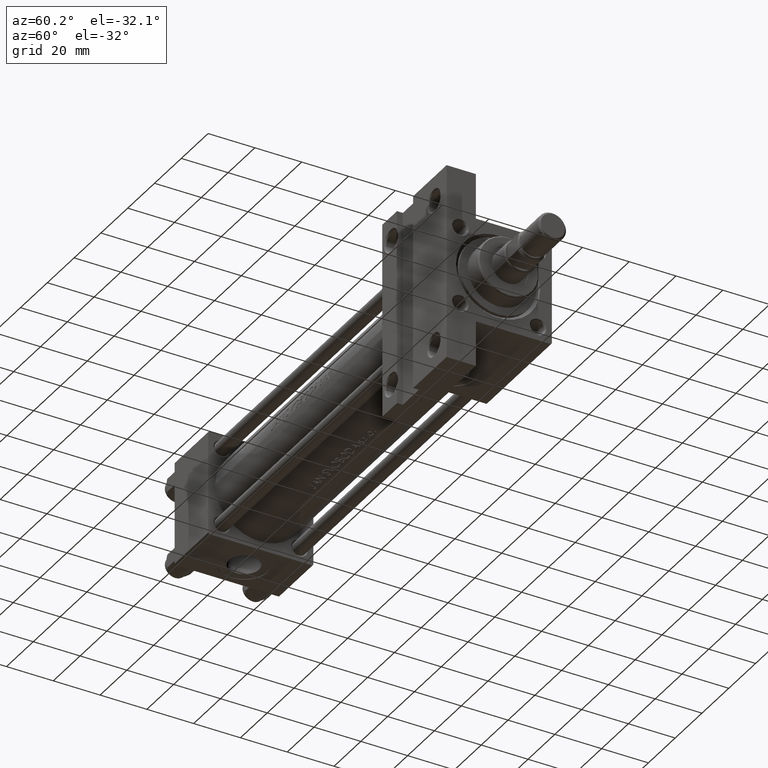
[diagram: clean part render]
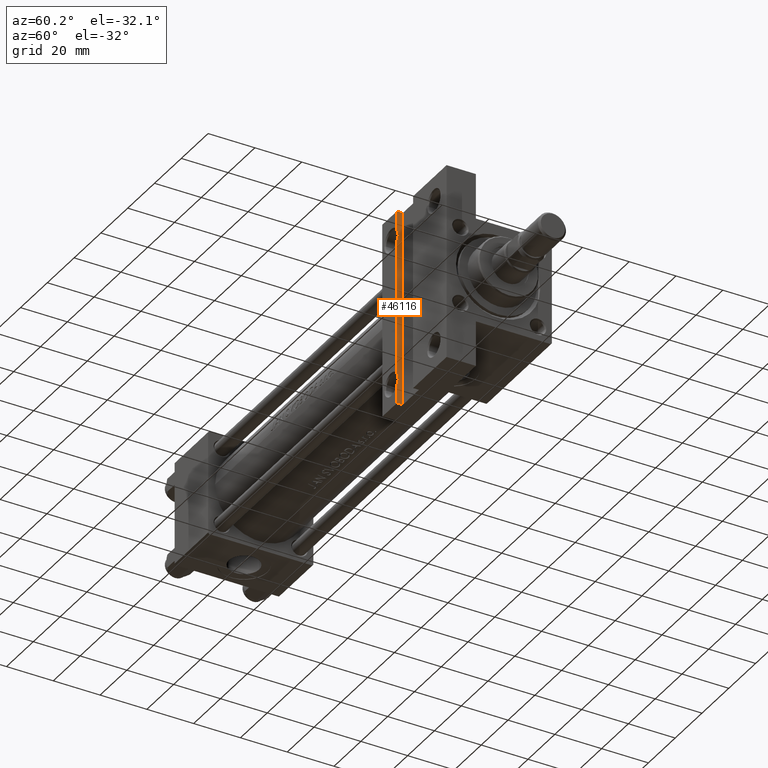
[diagram: same view with one face highlighted and labeled with its STEP entity id]
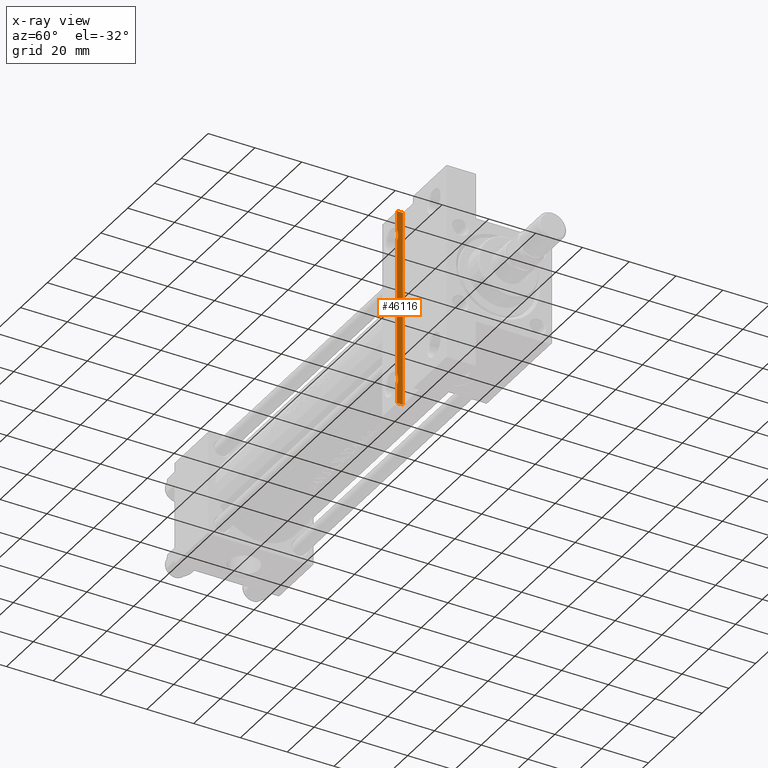
[diagram: x-ray of the same camera — body ghosted, the highlighted face saturated]
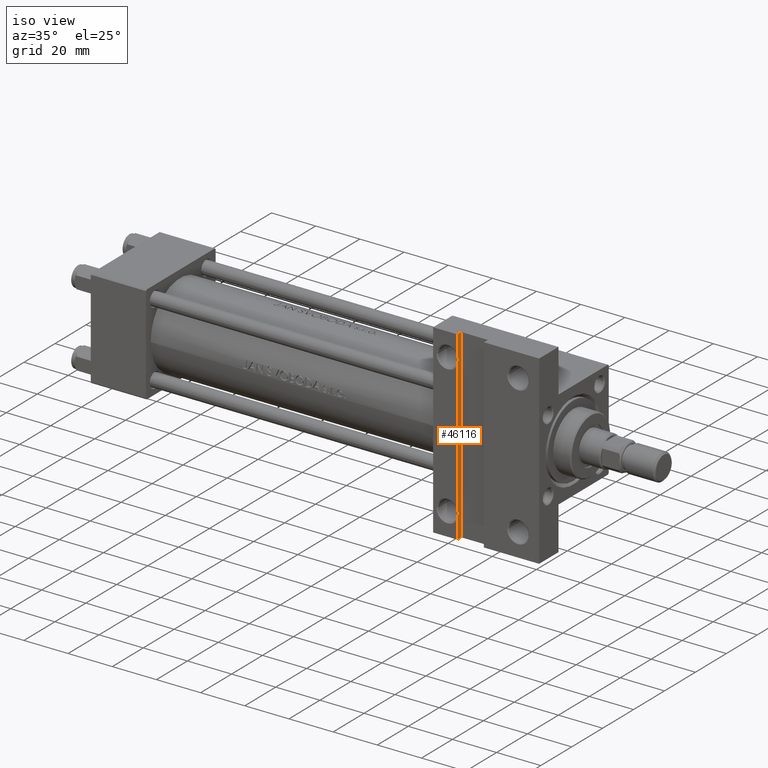
[diagram: same view with one face highlighted and labeled with its STEP entity id]
A machine part, auxiliary view. The second image highlights one B-rep face of the part: STEP entity #46116.
The next image is the same camera in x-ray: the body ghosted, the highlighted face saturated — about 0% of this face is hidden behind the body in this view.
A second angle (iso view) of the same face is appended — the face is thin or edge-on in the first view.
In plain terms, the highlighted planar face has unit normal (-1, 0, 0).
Its self-contained STEP definition (entity closure, byte-faithful):
#502 = CARTESIAN_POINT ( 'NONE',  ( 165.9999999999999716, -29.66403030664316276, -22.35084437994838424 ) ) ;
#686 = VERTEX_POINT ( 'NONE', #46204 ) ;
#2230 = EDGE_CURVE ( 'NONE', #34681, #48162, #38038, .T. ) ;
#2278 = VECTOR ( 'NONE', #11955, 1000.000000000000000 ) ;
#2422 = CARTESIAN_POINT ( 'NONE',  ( 165.9999999999999716, 30.02311897170865862, -22.22353803365220060 ) ) ;
#2601 = ORIENTED_EDGE ( 'NONE', *, *, #20163, .T. ) ;
#3137 = CARTESIAN_POINT ( 'NONE',  ( 165.9999999999999716, -42.00000000000000000, -22.50000000000000000 ) ) ;
#3641 = CARTESIAN_POINT ( 'NONE',  ( 166.0000000000000284, -33.33417802465332613, -22.35006374272753504 ) ) ;
#3818 = CARTESIAN_POINT ( 'NONE',  ( 165.9999999999999716, 41.99999999999999289, -22.50000000000000000 ) ) ;
#3907 = EDGE_LOOP ( 'NONE', ( #26713, #13455, #27431, #26203, #7223, #37115, #4515, #2601, #15443, #17796 ) ) ;
#4343 = AXIS2_PLACEMENT_3D ( 'NONE', #10146, #28675, #48148 ) ;
#4515 = ORIENTED_EDGE ( 'NONE', *, *, #2230, .T. ) ;
#4538 = LINE ( 'NONE', #44715, #30753 ) ;
#5169 = CARTESIAN_POINT ( 'NONE',  ( 165.9999999999999716, 33.67830214846343750, -22.50000000000000000 ) ) ;
#5454 = LINE ( 'NONE', #13454, #40871 ) ;
#5460 = VERTEX_POINT ( 'NONE', #44701 ) ;
#6807 = VECTOR ( 'NONE', #14611, 1000.000000000000000 ) ;
#7223 = ORIENTED_EDGE ( 'NONE', *, *, #11569, .F. ) ;
#7364 = VECTOR ( 'NONE', #15878, 1000.000000000000000 ) ;
#8443 = EDGE_CURVE ( 'NONE', #43243, #14190, #38563, .T. ) ;
#8805 = CARTESIAN_POINT ( 'NONE',  ( 165.9999999999999716, 33.33596969335683724, -22.35084437994839490 ) ) ;
#9525 = CARTESIAN_POINT ( 'NONE',  ( 166.0000000000000000, 31.87772890306887774, -22.00049999999995975 ) ) ;
#9726 = CARTESIAN_POINT ( 'NONE',  ( 165.9999999999999716, 31.50000000000000000, -22.00049999999996331 ) ) ;
#9885 = CARTESIAN_POINT ( 'NONE',  ( 165.9999999999999716, -33.67830214846343040, -22.50000000000000000 ) ) ;
#10010 = B_SPLINE_CURVE_WITH_KNOTS ( 'NONE', 3,
 ( #47495, #3641, #29212, #10711, #33346, #48216, #17530, #32625 ),
 .UNSPECIFIED., .F., .F.,
 ( 4, 2, 2, 4 ),
 ( 0.01579153760550475877, 0.01691587669904094302, 0.01747804624580902647, 0.01804021579257710992 ),
 .UNSPECIFIED. ) ;
#10146 = CARTESIAN_POINT ( 'NONE',  ( 165.9999999999999716, -42.00000000000000000, -20.00000000000000000 ) ) ;
#10711 = CARTESIAN_POINT ( 'NONE',  ( 166.0000000000000284, -32.43253651816986860, -22.09273279370933452 ) ) ;
#10716 = CARTESIAN_POINT ( 'NONE',  ( 165.9999999999999716, -42.00000000000000000, -20.00000000000000000 ) ) ;
#11569 = EDGE_CURVE ( 'NONE', #686, #17258, #34376, .T. ) ;
#11916 = B_SPLINE_CURVE_WITH_KNOTS ( 'NONE', 3,
 ( #23679, #9525, #16605, #39488, #8805, #5169 ),
 .UNSPECIFIED., .F., .F.,
 ( 4, 2, 4 ),
 ( 0.01804021579257789401, 0.01916729651592660039, 0.02029437723927530676 ),
 .UNSPECIFIED. ) ;
#11938 = CARTESIAN_POINT ( 'NONE',  ( 165.9999999999999716, 29.32169785153656250, -22.50000000000000000 ) ) ;
#11955 = DIRECTION ( 'NONE',  ( 0.000000000000000000, 1.000000000000000000, 0.000000000000000000 ) ) ;
#12663 = CARTESIAN_POINT ( 'NONE',  ( 165.9999999999999716, -42.00000000000000000, -22.50000000000000000 ) ) ;
#13312 = EDGE_CURVE ( 'NONE', #14190, #34378, #37138, .T. ) ;
#13454 = CARTESIAN_POINT ( 'NONE',  ( 165.9999999999999716, 41.99999999999999289, -20.00000000000000000 ) ) ;
#13455 = ORIENTED_EDGE ( 'NONE', *, *, #18027, .T. ) ;
#13801 = FACE_OUTER_BOUND ( 'NONE', #3907, .T. ) ;
#14099 = CARTESIAN_POINT ( 'NONE',  ( 165.9999999999999432, 31.31159496224145045, -22.00049999999994910 ) ) ;
#14190 = VERTEX_POINT ( 'NONE', #44459 ) ;
#14611 = DIRECTION ( 'NONE',  ( -0.000000000000000000, -0.000000000000000000, -1.000000000000000000 ) ) ;
#14985 = VERTEX_POINT ( 'NONE', #25619 ) ;
#15443 = ORIENTED_EDGE ( 'NONE', *, *, #8443, .T. ) ;
#15878 = DIRECTION ( 'NONE',  ( 0.000000000000000000, 1.000000000000000000, 0.000000000000000000 ) ) ;
#16605 = CARTESIAN_POINT ( 'NONE',  ( 166.0000000000000000, 32.24813495350927184, -22.04852933435972062 ) ) ;
#17258 = VERTEX_POINT ( 'NONE', #37513 ) ;
#17518 = VECTOR ( 'NONE', #22545, 1000.000000000000000 ) ;
#17530 = CARTESIAN_POINT ( 'NONE',  ( 166.0000000000000000, -31.68840503775854955, -22.00049999999992068 ) ) ;
#17796 = ORIENTED_EDGE ( 'NONE', *, *, #13312, .T. ) ;
#18027 = EDGE_CURVE ( 'NONE', #14985, #5460, #11916, .T. ) ;
#18182 = PLANE ( 'NONE',  #4343 ) ;
#20163 = EDGE_CURVE ( 'NONE', #48162, #43243, #10010, .T. ) ;
#20307 = DIRECTION ( 'NONE',  ( -0.000000000000000000, -0.000000000000000000, -1.000000000000000000 ) ) ;
#20703 = CARTESIAN_POINT ( 'NONE',  ( 166.0000000000000000, 29.66582197534668808, -22.35006374272754570 ) ) ;
#20949 = CARTESIAN_POINT ( 'NONE',  ( 165.9999999999999716, 31.12229540369525438, -22.01256252508621714 ) ) ;
#22545 = DIRECTION ( 'NONE',  ( 0.000000000000000000, 1.000000000000000000, 0.000000000000000000 ) ) ;
#22629 = B_SPLINE_CURVE_WITH_KNOTS ( 'NONE', 3,
 ( #31647, #20703, #2422, #28015, #42870, #20949, #14099, #9726 ),
 .UNSPECIFIED., .F., .F.,
 ( 4, 2, 2, 4 ),
 ( 0.01579153760550554980, 0.01691587669904172017, 0.01747804624580980709, 0.01804021579257789401 ),
 .UNSPECIFIED. ) ;
#23170 = CARTESIAN_POINT ( 'NONE',  ( 166.0000000000000000, -31.12227109693112226, -22.00049999999991357 ) ) ;
#23437 = CARTESIAN_POINT ( 'NONE',  ( 165.9999999999999716, -42.00000000000000000, -20.00000000000000000 ) ) ;
#23569 = EDGE_CURVE ( 'NONE', #17258, #43622, #5454, .T. ) ;
#23679 = CARTESIAN_POINT ( 'NONE',  ( 165.9999999999999716, 31.50000000000000000, -22.00049999999996331 ) ) ;
#25609 = EDGE_CURVE ( 'NONE', #34378, #14985, #22629, .T. ) ;
#25619 = CARTESIAN_POINT ( 'NONE',  ( 165.9999999999999716, 31.50000000000000000, -22.00049999999996331 ) ) ;
#26203 = ORIENTED_EDGE ( 'NONE', *, *, #23569, .F. ) ;
#26713 = ORIENTED_EDGE ( 'NONE', *, *, #25609, .T. ) ;
#27054 = CARTESIAN_POINT ( 'NONE',  ( 165.9999999999999432, -30.02307536041429614, -22.22344095967219602 ) ) ;
#27431 = ORIENTED_EDGE ( 'NONE', *, *, #45532, .T. ) ;
#28015 = CARTESIAN_POINT ( 'NONE',  ( 165.9999999999999432, 30.56746348183013495, -22.09273279370936294 ) ) ;
#28675 = DIRECTION ( 'NONE',  ( -1.000000000000000000, 0.000000000000000000, 0.000000000000000000 ) ) ;
#29212 = CARTESIAN_POINT ( 'NONE',  ( 165.9999999999999716, -32.97688102829134493, -22.22353803365217573 ) ) ;
#30753 = VECTOR ( 'NONE', #34237, 1000.000000000000000 ) ;
#31647 = CARTESIAN_POINT ( 'NONE',  ( 165.9999999999999716, 29.32169785153656250, -22.50000000000000000 ) ) ;
#32610 = EDGE_CURVE ( 'NONE', #686, #34681, #36032, .T. ) ;
#32625 = CARTESIAN_POINT ( 'NONE',  ( 165.9999999999999716, -31.50000000000000000, -22.00049999999992068 ) ) ;
#33346 = CARTESIAN_POINT ( 'NONE',  ( 166.0000000000000000, -32.24910599144148904, -22.05870219545281330 ) ) ;
#34237 = DIRECTION ( 'NONE',  ( 0.000000000000000000, 1.000000000000000000, 0.000000000000000000 ) ) ;
#34376 = LINE ( 'NONE', #23437, #7364 ) ;
#34378 = VERTEX_POINT ( 'NONE', #11938 ) ;
#34681 = VERTEX_POINT ( 'NONE', #3137 ) ;
#36032 = LINE ( 'NONE', #10716, #6807 ) ;
#36619 = CARTESIAN_POINT ( 'NONE',  ( 165.9999999999999716, -31.50000000000000000, -22.00049999999992068 ) ) ;
#37115 = ORIENTED_EDGE ( 'NONE', *, *, #32610, .T. ) ;
#37138 = LINE ( 'NONE', #44220, #17518 ) ;
#37513 = CARTESIAN_POINT ( 'NONE',  ( 165.9999999999999716, 41.99999999999999289, -20.00000000000000000 ) ) ;
#38014 = CARTESIAN_POINT ( 'NONE',  ( 166.0000000000000000, -30.75186504649072816, -22.04852933435968509 ) ) ;
#38038 = LINE ( 'NONE', #12663, #2278 ) ;
#38563 = B_SPLINE_CURVE_WITH_KNOTS ( 'NONE', 3,
 ( #41656, #23170, #38014, #27054, #502, #41911 ),
 .UNSPECIFIED., .F., .F.,
 ( 4, 2, 4 ),
 ( 0.01804021579257710992, 0.01916729651592580935, 0.02029437723927450532 ),
 .UNSPECIFIED. ) ;
#39488 = CARTESIAN_POINT ( 'NONE',  ( 165.9999999999999432, 32.97692463958570386, -22.22344095967221378 ) ) ;
#40871 = VECTOR ( 'NONE', #20307, 1000.000000000000000 ) ;
#41656 = CARTESIAN_POINT ( 'NONE',  ( 165.9999999999999716, -31.50000000000000000, -22.00049999999992068 ) ) ;
#41911 = CARTESIAN_POINT ( 'NONE',  ( 165.9999999999999716, -29.32169785153656960, -22.50000000000000000 ) ) ;
#42870 = CARTESIAN_POINT ( 'NONE',  ( 165.9999999999999432, 30.75089400855851807, -22.05870219545285238 ) ) ;
#43243 = VERTEX_POINT ( 'NONE', #36619 ) ;
#43622 = VERTEX_POINT ( 'NONE', #3818 ) ;
#44220 = CARTESIAN_POINT ( 'NONE',  ( 165.9999999999999716, -42.00000000000000000, -22.50000000000000000 ) ) ;
#44459 = CARTESIAN_POINT ( 'NONE',  ( 165.9999999999999716, -29.32169785153656960, -22.50000000000000000 ) ) ;
#44701 = CARTESIAN_POINT ( 'NONE',  ( 165.9999999999999716, 33.67830214846343750, -22.50000000000000000 ) ) ;
#44715 = CARTESIAN_POINT ( 'NONE',  ( 165.9999999999999716, -42.00000000000000000, -22.50000000000000000 ) ) ;
#45532 = EDGE_CURVE ( 'NONE', #5460, #43622, #4538, .T. ) ;
#46116 = ADVANCED_FACE ( 'NONE', ( #13801 ), #18182, .F. ) ;
#46204 = CARTESIAN_POINT ( 'NONE',  ( 165.9999999999999716, -42.00000000000000000, -20.00000000000000000 ) ) ;
#47495 = CARTESIAN_POINT ( 'NONE',  ( 165.9999999999999716, -33.67830214846343040, -22.50000000000000000 ) ) ;
#48148 = DIRECTION ( 'NONE',  ( 0.000000000000000000, 0.000000000000000000, 1.000000000000000000 ) ) ;
#48162 = VERTEX_POINT ( 'NONE', #9885 ) ;
#48216 = CARTESIAN_POINT ( 'NONE',  ( 165.9999999999999716, -31.87770459630476338, -22.01256252508617806 ) ) ;